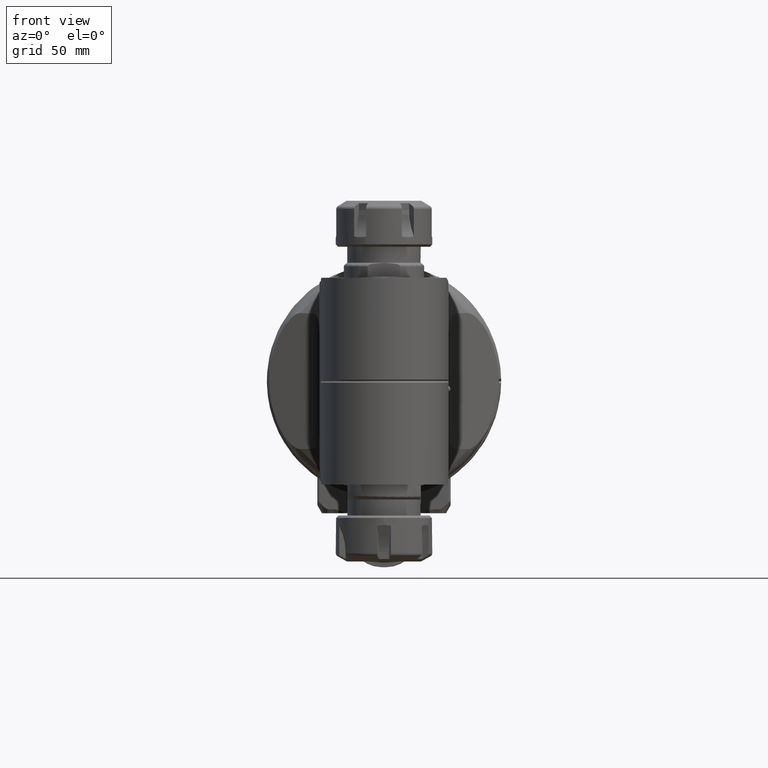
[diagram: clean part render]
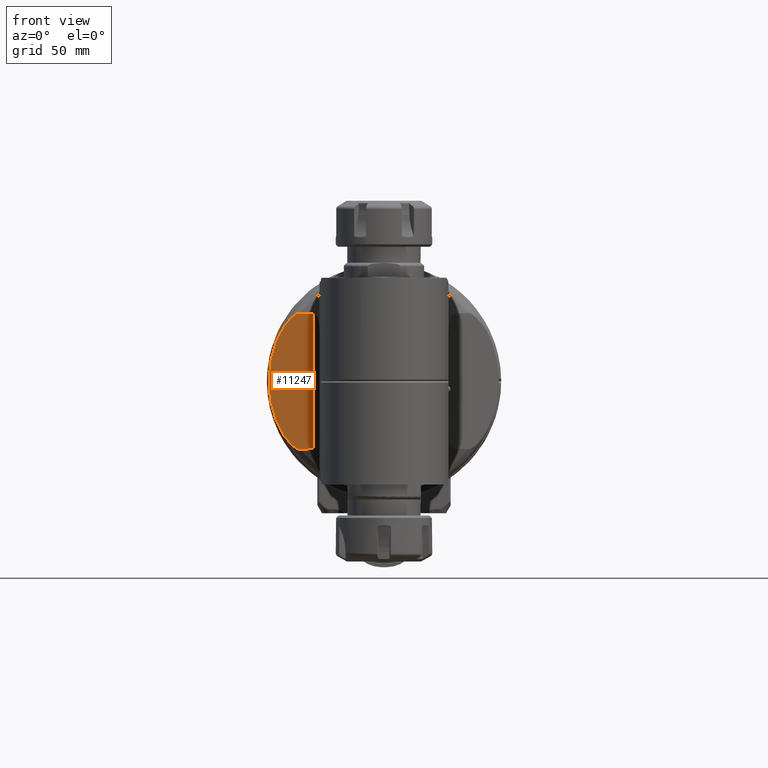
[diagram: same view with one face highlighted and labeled with its STEP entity id]
A machine part, front view. The second image highlights one B-rep face of the part: STEP entity #11247.
In plain terms, the highlighted planar face has unit normal (0.342, 0.9397, 0).
Its self-contained STEP definition (entity closure, byte-faithful):
#42=ELLIPSE('',#12059,50.3672702558906,29.5863002294594);
#43=ELLIPSE('',#12061,53.2088886237962,50.);
#44=ELLIPSE('',#12062,50.3672702558906,29.5863002294594);
#544=B_SPLINE_CURVE_WITH_KNOTS('',3,(#17565,#17566,#17567,#17568,#17569,
#17570,#17571,#17572,#17573,#17574,#17575,#17576,#17577,#17578,#17579,#17580,
#17581,#17582),.UNSPECIFIED.,.F.,.F.,(4,2,2,2,2,2,2,2,4),(7.09037016510969,
7.87701940297548,8.1777676130302,8.47851582308493,8.80354910515075,9.12858238721657,
9.39474930405344,9.46225514204568,9.47110879821725),.UNSPECIFIED.);
#545=B_SPLINE_CURVE_WITH_KNOTS('',3,(#17586,#17587,#17588,#17589,#17590,
#17591,#17592,#17593,#17594,#17595,#17596,#17597,#17598,#17599,#17600,#17601,
#17602,#17603),.UNSPECIFIED.,.F.,.F.,(4,2,2,2,2,2,2,2,4),(-5.31609924693861,
-4.52945000907507,-4.22870179902035,-3.92795358896562,-3.6029203068998,
-3.27788702483398,-3.0117201079971,-2.94421427000487,-2.9353606086716),
 .UNSPECIFIED.);
#1571=FACE_OUTER_BOUND('',#2281,.T.);
#2281=EDGE_LOOP('',(#7636,#7637,#7638,#7639,#7640,#7641));
#3069=LINE('',#17098,#3807);
#3807=VECTOR('',#13428,58.64425386089);
#4563=VERTEX_POINT('',#17080);
#4564=VERTEX_POINT('',#17097);
#4637=VERTEX_POINT('',#17560);
#4638=VERTEX_POINT('',#17564);
#4639=VERTEX_POINT('',#17583);
#4640=VERTEX_POINT('',#17585);
#5706=EDGE_CURVE('',#4563,#4564,#3069,.T.);
#5810=EDGE_CURVE('',#4563,#4637,#42,.T.);
#5811=EDGE_CURVE('',#4638,#4637,#544,.T.);
#5812=EDGE_CURVE('',#4638,#4639,#43,.T.);
#5813=EDGE_CURVE('',#4639,#4640,#545,.T.);
#5814=EDGE_CURVE('',#4640,#4564,#44,.T.);
#7636=ORIENTED_EDGE('',*,*,#5810,.T.);
#7637=ORIENTED_EDGE('',*,*,#5811,.F.);
#7638=ORIENTED_EDGE('',*,*,#5812,.T.);
#7639=ORIENTED_EDGE('',*,*,#5813,.T.);
#7640=ORIENTED_EDGE('',*,*,#5814,.T.);
#7641=ORIENTED_EDGE('',*,*,#5706,.F.);
#10910=PLANE('',#12060);
#11247=ADVANCED_FACE('',(#1571),#10910,.F.);
#12059=AXIS2_PLACEMENT_3D('',#17562,#13587,#13588);
#12060=AXIS2_PLACEMENT_3D('',#17563,#13589,#13590);
#12061=AXIS2_PLACEMENT_3D('',#17584,#13591,#13592);
#12062=AXIS2_PLACEMENT_3D('',#17604,#13593,#13594);
#13428=DIRECTION('',(-1.605390235018E-13,-5.827869456935E-14,1.));
#13587=DIRECTION('center_axis',(0.342020143325699,-0.939692620785897,0.));
#13588=DIRECTION('ref_axis',(0.939692620785897,0.342020143325699,-1.39349996950756E-15));
#13589=DIRECTION('center_axis',(-0.342020143325699,0.939692620785897,0.));
#13590=DIRECTION('ref_axis',(0.939692620785897,0.342020143325699,0.));
#13591=DIRECTION('center_axis',(0.342020143325699,-0.939692620785897,0.));
#13592=DIRECTION('ref_axis',(-0.939692620785897,-0.342020143325699,0.));
#13593=DIRECTION('center_axis',(0.342020143325699,-0.939692620785897,0.));
#13594=DIRECTION('ref_axis',(0.939692620785897,0.342020143325699,-1.39349996950756E-15));
#17080=CARTESIAN_POINT('',(30.6319194267,-19.04205971778,-29.32212693045));
#17097=CARTESIAN_POINT('',(30.6319194267,-19.04205971778,29.32212693045));
#17098=CARTESIAN_POINT('',(30.63191942671,-19.04205971777,-29.32212693045));
#17560=CARTESIAN_POINT('',(36.6650286251246,-16.8461875546269,-29.5857913848792));
#17562=CARTESIAN_POINT('Origin',(36.9426079340045,-16.7451569433892,-1.77635683940025E-14));
#17563=CARTESIAN_POINT('Origin',(28.,-20.00000004808,0.));
#17564=CARTESIAN_POINT('',(49.11532946603,-12.31464863572,-9.363995485014));
#17565=CARTESIAN_POINT('Ctrl Pts',(49.1153294660296,-12.3146486357204,-9.36399548501391));
#17566=CARTESIAN_POINT('Ctrl Pts',(48.5814780399138,-12.5089546643471,-12.1641130973679));
#17567=CARTESIAN_POINT('Ctrl Pts',(47.7899078579087,-12.7970626489297,-14.89268418197));
#17568=CARTESIAN_POINT('Ctrl Pts',(46.4688118507617,-13.2779022721392,-18.2335890551422));
#17569=CARTESIAN_POINT('Ctrl Pts',(46.0312727674626,-13.4371534747882,-19.2325943001654));
#17570=CARTESIAN_POINT('Ctrl Pts',(45.0645771002807,-13.7890019232365,-21.1784209335023));
#17571=CARTESIAN_POINT('Ctrl Pts',(44.5349222526508,-13.9817805222086,-22.1249619431992));
#17572=CARTESIAN_POINT('Ctrl Pts',(43.4504309586156,-14.3765030725583,-23.8625497430824));
#17573=CARTESIAN_POINT('Ctrl Pts',(42.7837721084178,-14.6191470504405,-24.8187856959593));
#17574=CARTESIAN_POINT('Ctrl Pts',(41.3190544357736,-15.1522606848867,-26.6017151146837));
#17575=CARTESIAN_POINT('Ctrl Pts',(40.5213723972789,-15.4425932033076,-27.4287590831444));
#17576=CARTESIAN_POINT('Ctrl Pts',(39.05613551005,-15.9758958164078,-28.6338312433967));
#17577=CARTESIAN_POINT('Ctrl Pts',(38.2135825467563,-16.2825600158396,-29.2079207962776));
#17578=CARTESIAN_POINT('Ctrl Pts',(37.2109893891602,-16.6474740822835,-29.5221310747005));
#17579=CARTESIAN_POINT('Ctrl Pts',(36.9621413156877,-16.738047373882,-29.5748920999617));
#17580=CARTESIAN_POINT('Ctrl Pts',(36.7231583182006,-16.825030071463,-29.5852601598776));
#17581=CARTESIAN_POINT('Ctrl Pts',(36.694400813809,-16.8354969470733,-29.5858990860272));
#17582=CARTESIAN_POINT('Ctrl Pts',(36.6650286234101,-16.8461875500938,-29.5857914024908));
#17583=CARTESIAN_POINT('',(49.11532946603,-12.31464863572,9.363995485039));
#17584=CARTESIAN_POINT('Origin',(0.,-30.1911666075347,0.));
#17585=CARTESIAN_POINT('',(36.6650285721784,-16.8461875691952,29.5857914007441));
#17586=CARTESIAN_POINT('Ctrl Pts',(49.1153294660251,-12.314648635722,9.36399548503791));
#17587=CARTESIAN_POINT('Ctrl Pts',(48.5814780399093,-12.5089546643488,12.1641130973835));
#17588=CARTESIAN_POINT('Ctrl Pts',(47.7899078579059,-12.7970626489307,14.8926841819769));
#17589=CARTESIAN_POINT('Ctrl Pts',(46.4688118507617,-13.2779022721392,18.2335890551422));
#17590=CARTESIAN_POINT('Ctrl Pts',(46.0312727674626,-13.4371534747882,19.2325943001654));
#17591=CARTESIAN_POINT('Ctrl Pts',(45.0645771002807,-13.7890019232365,21.1784209335023));
#17592=CARTESIAN_POINT('Ctrl Pts',(44.5349222526508,-13.9817805222086,22.1249619431992));
#17593=CARTESIAN_POINT('Ctrl Pts',(43.4504309586156,-14.3765030725583,23.8625497430824));
#17594=CARTESIAN_POINT('Ctrl Pts',(42.7837721084178,-14.6191470504405,24.8187856959593));
#17595=CARTESIAN_POINT('Ctrl Pts',(41.3190544357736,-15.1522606848867,26.6017151146837));
#17596=CARTESIAN_POINT('Ctrl Pts',(40.5213723972789,-15.4425932033076,27.4287590831444));
#17597=CARTESIAN_POINT('Ctrl Pts',(39.05613551005,-15.9758958164078,28.6338312433967));
#17598=CARTESIAN_POINT('Ctrl Pts',(38.2135825467563,-16.2825600158396,29.2079207962776));
#17599=CARTESIAN_POINT('Ctrl Pts',(37.2109893891602,-16.6474740822835,29.5221310747005));
#17600=CARTESIAN_POINT('Ctrl Pts',(36.9621413156877,-16.738047373882,29.5748920999617));
#17601=CARTESIAN_POINT('Ctrl Pts',(36.723158302046,-16.8250300773428,29.5852601605784));
#17602=CARTESIAN_POINT('Ctrl Pts',(36.6944007802733,-16.8354969592794,29.5858990867678));
#17603=CARTESIAN_POINT('Ctrl Pts',(36.6650285720273,-16.8461875687956,29.5857914023024));
#17604=CARTESIAN_POINT('Origin',(36.9426079340045,-16.7451569433892,-1.77635683940025E-14));